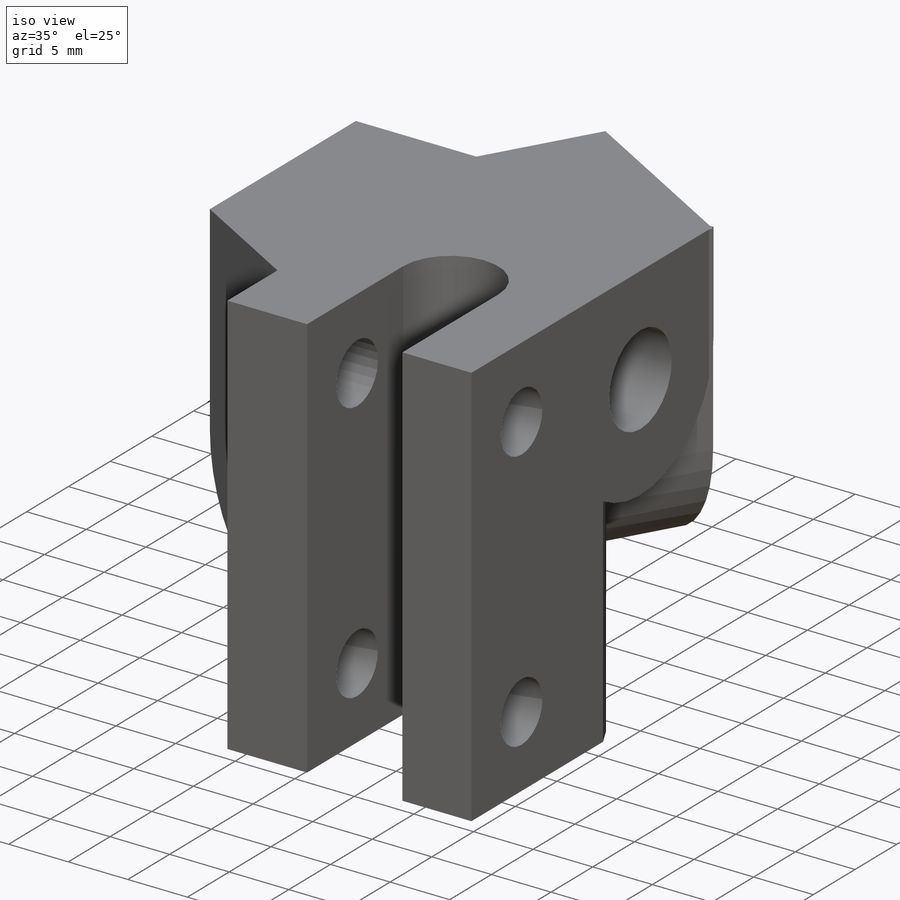
[diagram: iso view]
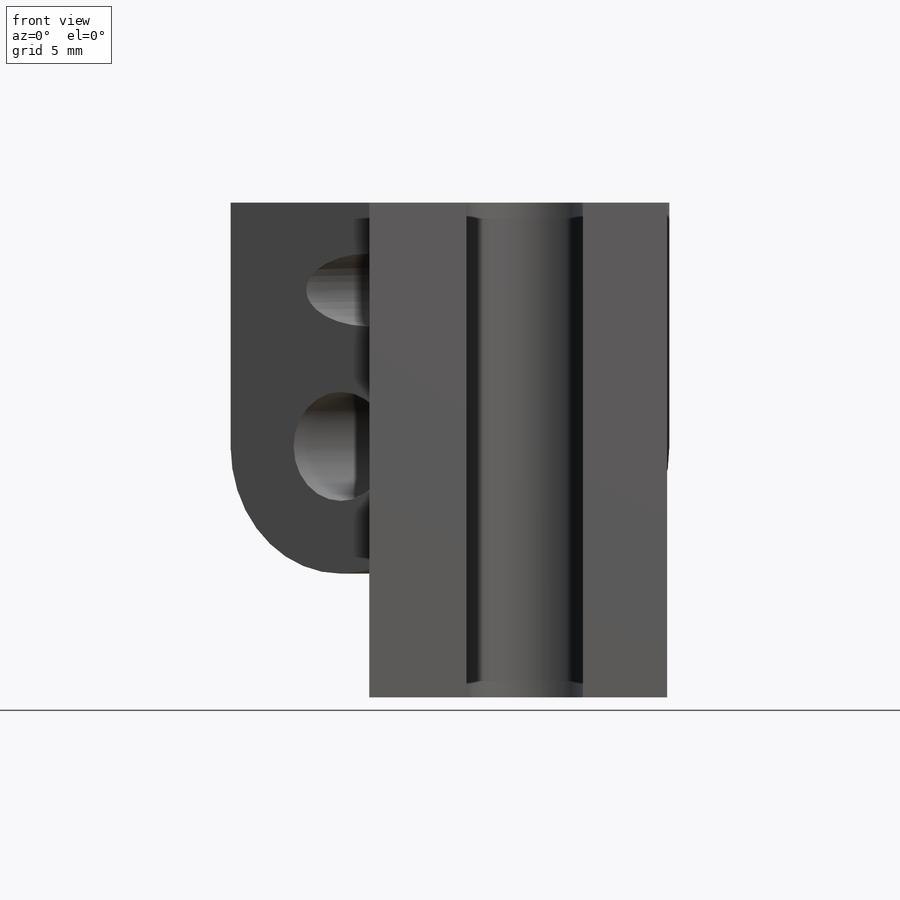
[diagram: front view]
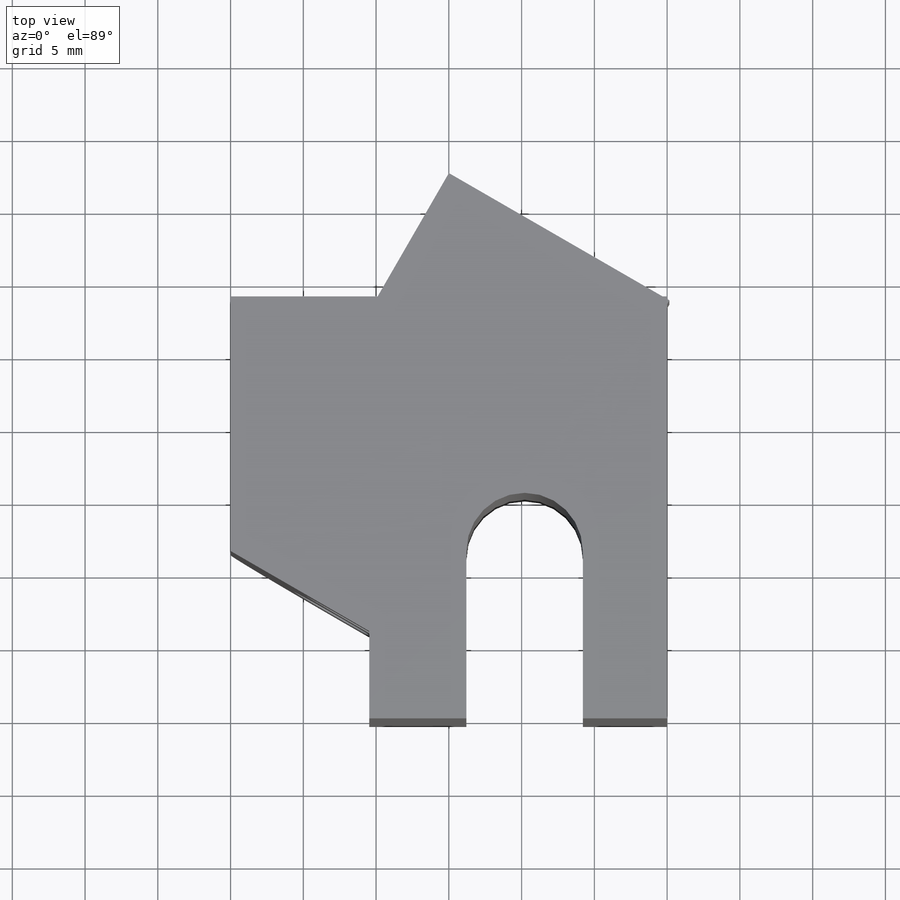
[diagram: top view]
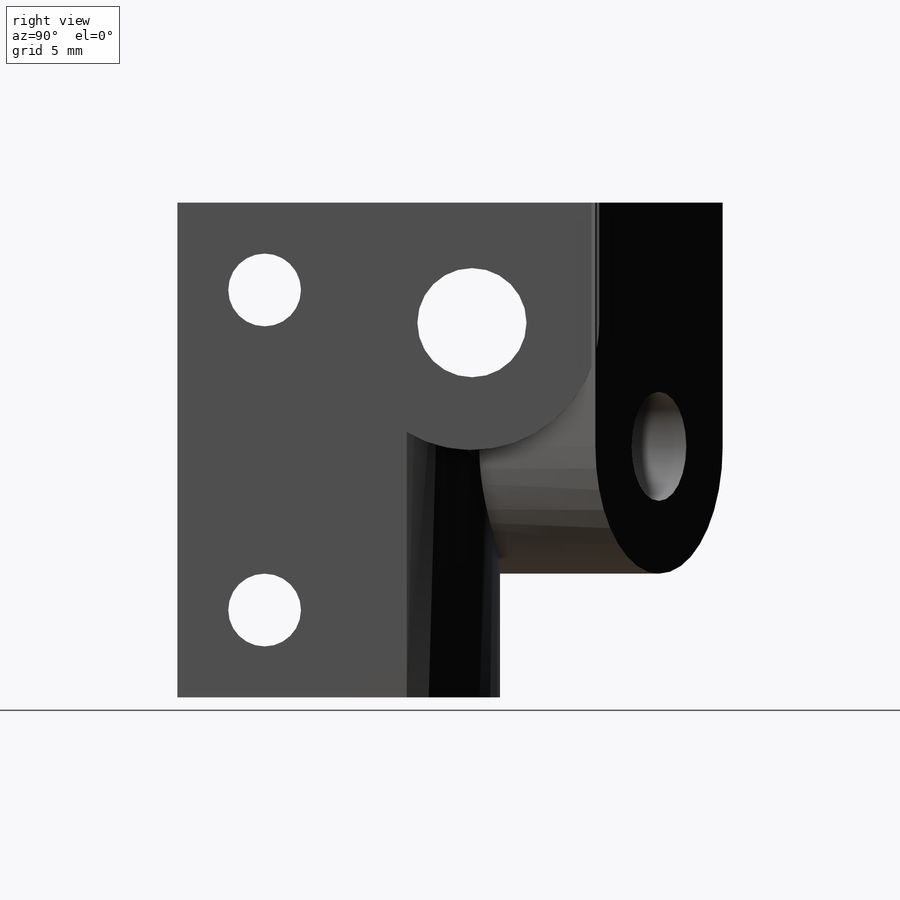
[diagram: right view]
SOLIDWORKS PART (.sldprt)
format: sldprt  version: not decoded by parser v0  size: 327,168 bytes
history: native  units: mm
features: sketch x9, extrude x5, cut_extrude x4, material x1, plane x1, mirror x1, delete_body x1 (+11 scaffold rows collapsed)
feature tree (33):
  scaffold x11  (default folders/planes/origin — collapsed)
  material  "Material <not specified>"
  sketch  "Sketch1"  dims[D1=8.75mm D3=7.5mm D2=4.5mm]
  extrude  "Boss-Extrude1"  Depth=30mm
  plane  "Plane1"
  sketch  "Sketch2"  dims[D1=8.75mm D2=7.5mm D3=1.0mm]
  extrude  "Boss-Extrude2"  Depth=30mm
  sketch  "Sketch3"  dims[D1=8.0mm D2=5.0mm D3=5.0mm]
  cut_extrude  "Cut-Extrude1"  [1 undecoded]
  sketch  "Sketch4"  dims[D1=7.5mm D2=5.0mm]
  extrude  "Boss-Extrude3"  Depth=10mm
  sketch  "Sketch6"  dims[D1=6.0mm]
  extrude  "Boss-Extrude4"  [1 undecoded]
  sketch  "Sketch9"
  extrude  "Boss-Extrude5"  Depth=34mm
  sketch  "Sketch5"  dims[D1=5.0mm D2=6.0mm D3=12.0mm D4=6.0mm]
  cut_extrude  "Cut-Extrude2"  [1 undecoded]
  sketch  "Sketch7"
  cut_extrude  "Cut-Extrude3"  [1 undecoded]
  sketch  "Sketch8"
  cut_extrude  "Cut-Extrude4"  Depth=27.5mm
  mirror  "Mirror1"
  delete_body  "Body-Delete1"
decode coverage: 11 of 20 modeling features carry decoded parameters
note: 4 parameter values undecoded
summary: no parameter record found for 4 features
note: suppression state not decoded; provenance and decode notes live in map.json
